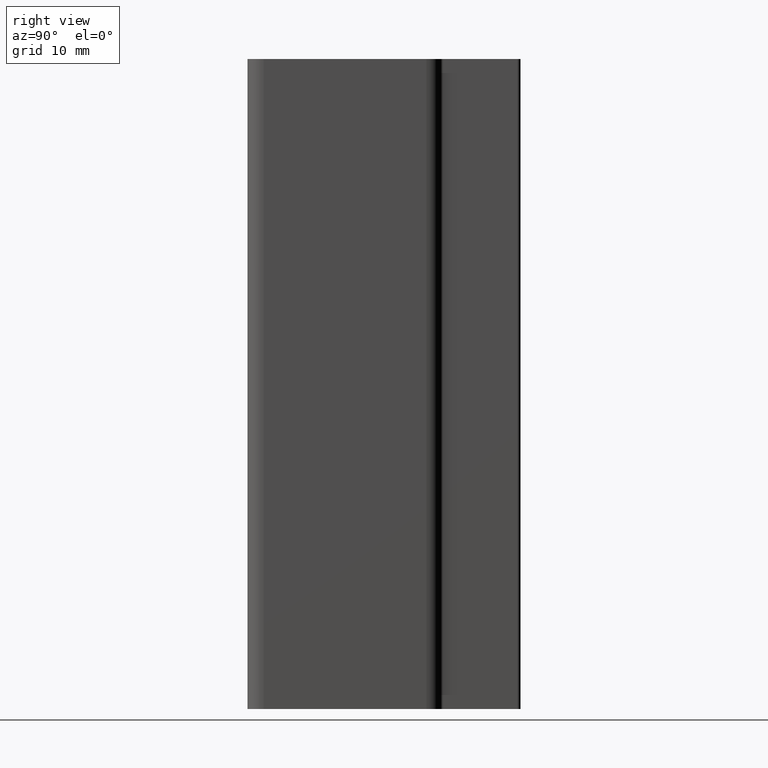
[diagram: clean part render]
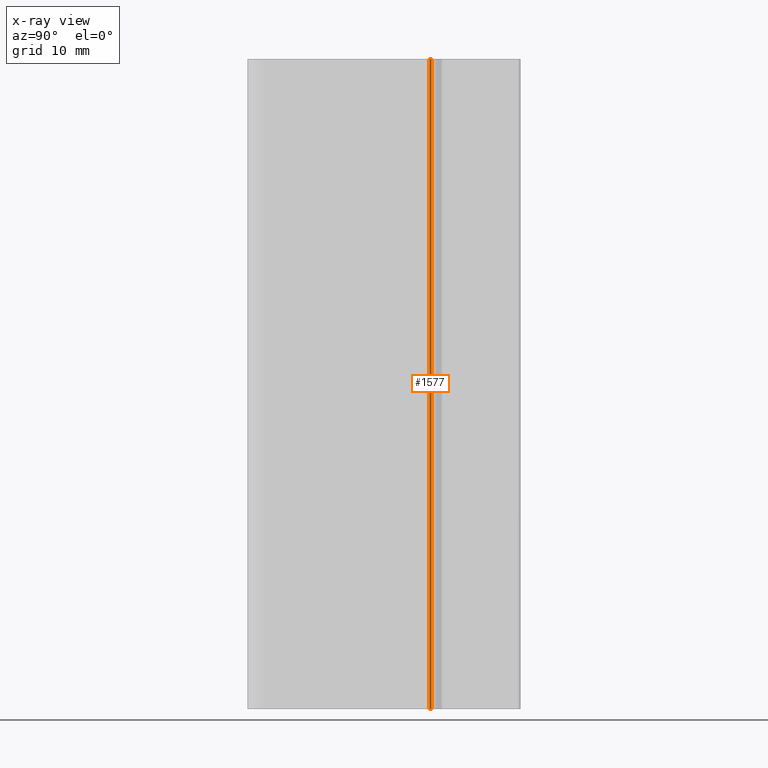
[diagram: x-ray — body ghosted, one internal face saturated and labeled with its STEP entity id]
A machine part, right view, then the same camera in x-ray: the body is ghosted and one INTERNAL B-rep face — a face not visible from any outside direction — is saturated and labeled: STEP entity #1577.
In plain terms, the highlighted planar face has unit normal (-1, 0, 0).
Its self-contained STEP definition (entity closure, byte-faithful):
#990=CARTESIAN_POINT('',(-2.499999999997556,28.299999999971533,100.0));
#991=VERTEX_POINT('',#990);
#998=CARTESIAN_POINT('',(-2.499999999997556,27.999999999971578,100.0));
#999=VERTEX_POINT('',#998);
#1000=CARTESIAN_POINT('',(-2.499999999997556,27.999999999971578,100.0));
#1001=DIRECTION('',(0.0,1.0,0.0));
#1002=VECTOR('',#1001,0.299999999999955);
#1003=LINE('',#1000,#1002);
#1004=EDGE_CURVE('',#999,#991,#1003,.T.);
#1152=CARTESIAN_POINT('',(-2.499999999997556,27.999999999971578,0.0));
#1153=VERTEX_POINT('',#1152);
#1160=CARTESIAN_POINT('',(-2.499999999997556,28.299999999971533,0.0));
#1161=VERTEX_POINT('',#1160);
#1162=CARTESIAN_POINT('',(-2.499999999997556,27.999999999971578,0.0));
#1163=DIRECTION('',(0.0,1.0,0.0));
#1164=VECTOR('',#1163,0.299999999999955);
#1165=LINE('',#1162,#1164);
#1166=EDGE_CURVE('',#1153,#1161,#1165,.T.);
#1550=CARTESIAN_POINT('',(-2.499999999997556,27.999999999971578,100.0));
#1551=DIRECTION('',(0.0,0.0,-1.0));
#1552=VECTOR('',#1551,100.0);
#1553=LINE('',#1550,#1552);
#1554=EDGE_CURVE('',#999,#1153,#1553,.T.);
#1561=CARTESIAN_POINT('',(-2.499999999997556,27.999999999971578,100.0));
#1562=DIRECTION('',(-1.0,0.0,0.0));
#1563=DIRECTION('',(0.0,1.0,0.0));
#1564=AXIS2_PLACEMENT_3D('',#1561,#1562,#1563);
#1565=PLANE('',#1564);
#1566=ORIENTED_EDGE('',*,*,#1004,.T.);
#1567=CARTESIAN_POINT('',(-2.499999999997556,28.299999999971533,100.0));
#1568=DIRECTION('',(0.0,0.0,-1.0));
#1569=VECTOR('',#1568,100.0);
#1570=LINE('',#1567,#1569);
#1571=EDGE_CURVE('',#991,#1161,#1570,.T.);
#1572=ORIENTED_EDGE('',*,*,#1571,.T.);
#1573=ORIENTED_EDGE('',*,*,#1166,.F.);
#1574=ORIENTED_EDGE('',*,*,#1554,.F.);
#1575=EDGE_LOOP('',(#1566,#1572,#1573,#1574));
#1576=FACE_OUTER_BOUND('',#1575,.T.);
#1577=ADVANCED_FACE('',(#1576),#1565,.T.);